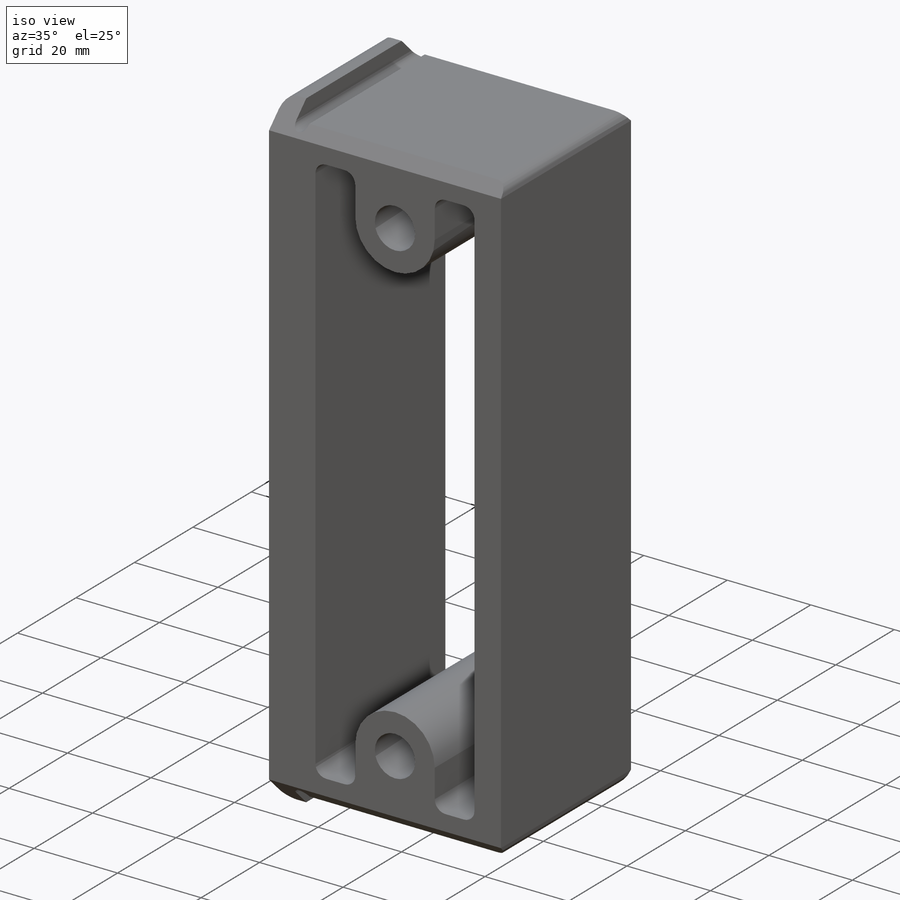
[diagram: iso view]
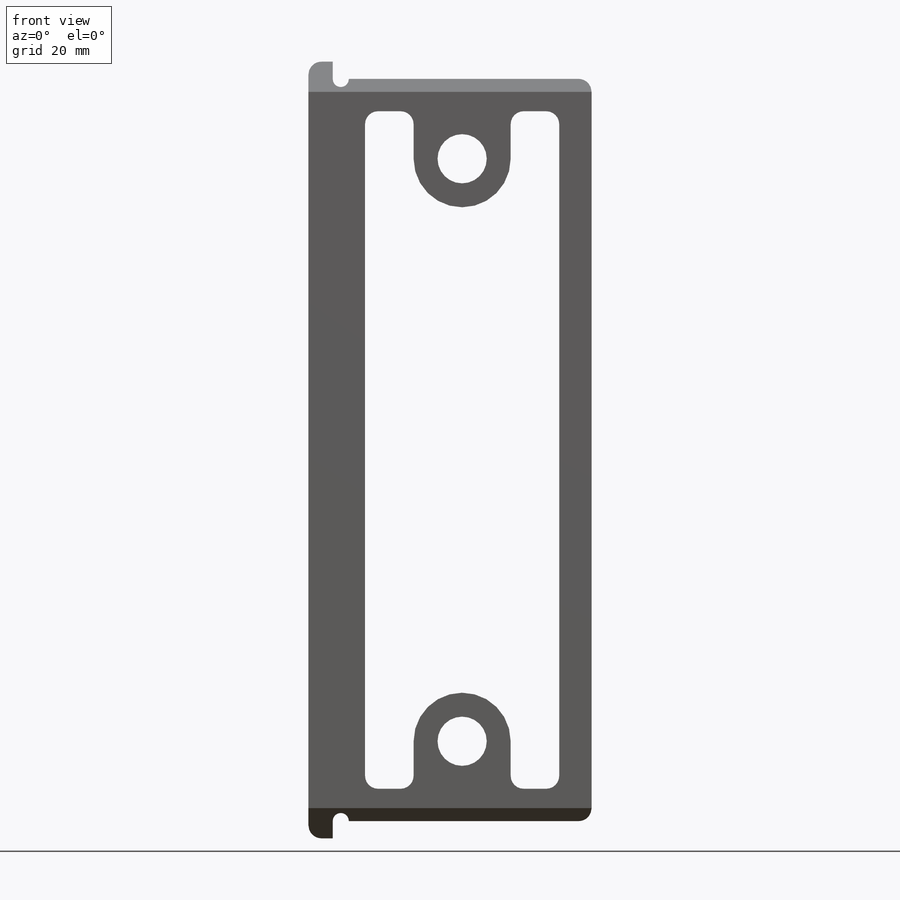
[diagram: front view]
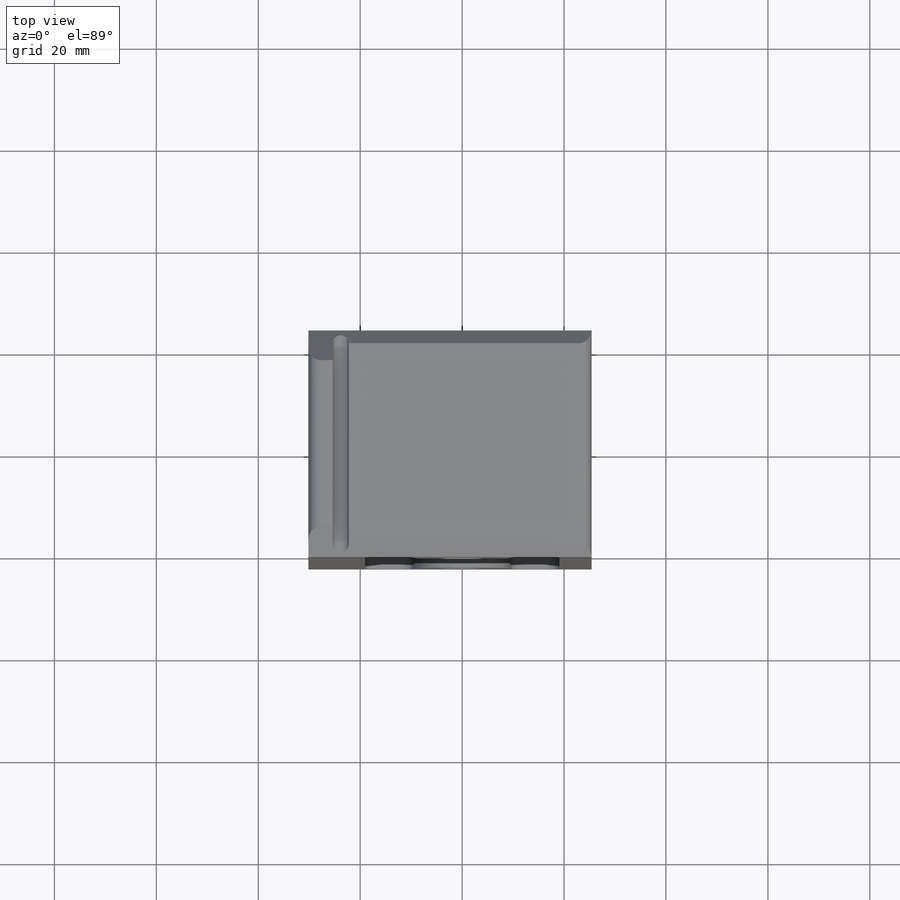
[diagram: top view]
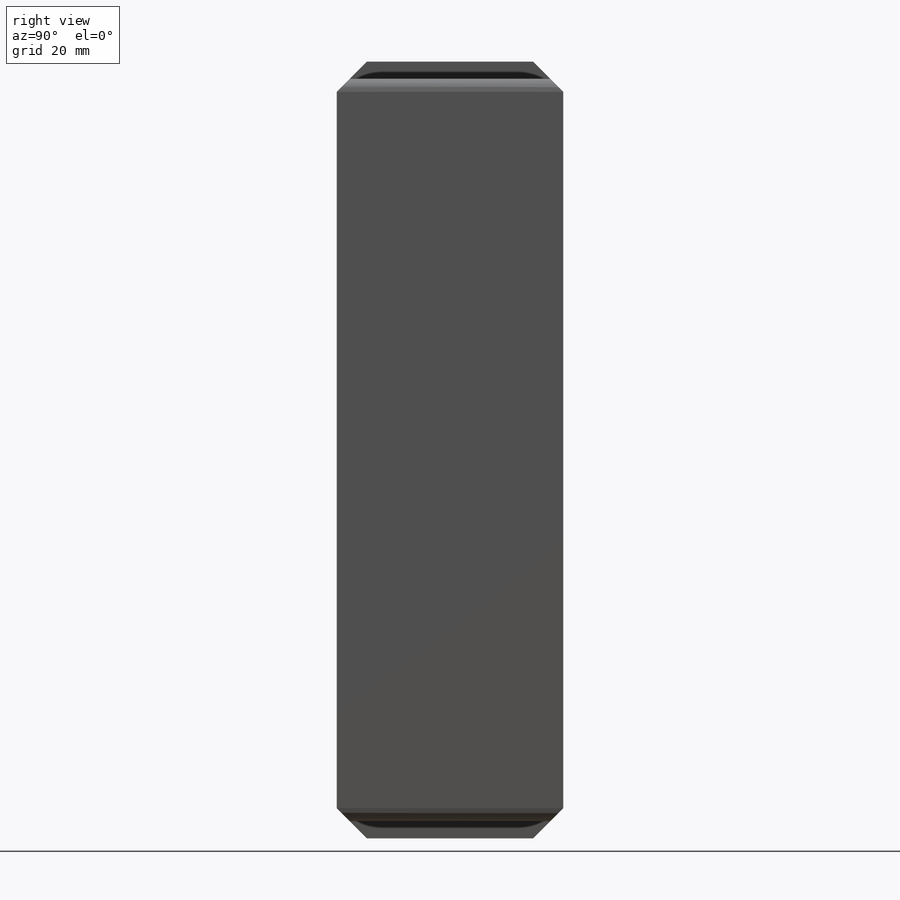
[diagram: right view]
SOLIDWORKS PART (.sldprt)
format: sldprt  version: not decoded by parser v0  size: 322,560 bytes
history: native  units: mm
features: sketch x4, cut_extrude x3, mirror x3, material x1, extrude x1, fillet x1 (+11 scaffold rows collapsed)
feature tree (24):
  scaffold x11  (default folders/planes/origin — collapsed)
  material  "6061-T6 (SS)"
  sketch  "Sketch1"  dims[c1.D6=9.652mm c1.D1=47.625mm c1.D2=50.8mm c1.D3=152.4mm c1.D4=145.6436mm c1.D5=3.175mm c2.D2=50.8mm c2.D1=145.6436mm c3.D2=50.8mm c3.D3=114.3mm c3.D4=4.7625mm c3.D5=152.4mm]
  extrude  "Boss-Extrude1"  Depth=44.45mm
  sketch  "Sketch3"  dims[D3=19.05mm D1=6.35mm D2=6.35mm]
  cut_extrude  "Cut-Extrude2"  [1 undecoded]
  sketch  "Sketch4"  dims[D1=1.5875mm]
  cut_extrude  "Cut-Extrude3"  [1 undecoded]
  mirror  "Mirror1"
  fillet  "Fillet1"  Radius=2.54mm
  sketch  "Sketch5"  dims[c1.D1=~9.364769mm c2.D1=45.0deg]
  cut_extrude  "Cut-Extrude4"  [1 undecoded]
  mirror  "Mirror2"
  mirror  "Mirror3"
decode coverage: 6 of 12 modeling features carry decoded parameters
note: ~ marks probable driven/reference dimensions
note: 3 parameter values undecoded
summary: no parameter record found for 3 features
note: suppression state not decoded; provenance and decode notes live in map.json
